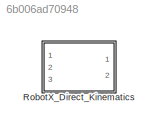
MODEL slx_6b006ad70948
KIND library
CONFIG AbsTol = auto
CONFIG EnableMultiTasking = off
CONFIG FixedStep = auto
CONFIG MaxStep = auto
CONFIG MinStep = auto
CONFIG RelTol = 1e-3
CONFIG SampleTimeConstraint = Unconstrained
CONFIG SolverName = VariableStepAuto
CONFIG StartTime = 0.0
CONFIG StopTime = 10.0
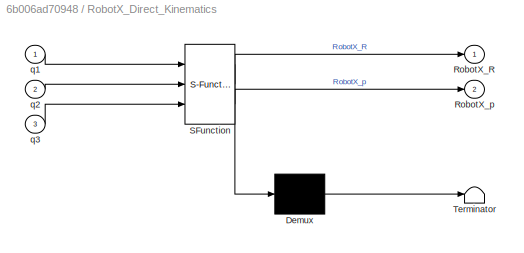
BLOCK [SubSystem] RobotX_Direct_Kinematics
  ErrorFcn = Stateflow.Translate.translate
  PermitHierarchicalResolution = ExplicitOnly
  Ports = [3, 2]
  RequestExecContextInheritance = off
  SFBlockType = MATLAB Function
  TreatAsAtomicUnit = on
BLOCK [Demux] RobotX_Direct_Kinematics/ Demux 
  Outputs = 1
  Ports = [1, 1]
BLOCK [S-Function] RobotX_Direct_Kinematics/ SFunction 
  EnableBusSupport = off
  FunctionName = sf_sfun
  PortCounts = [3 3]
  Ports = [3, 3]
  SFcnIsStateOwnerBlock = off
  SFunctionDeploymentMode = off
  Tag = Stateflow S-Function 2
BLOCK [Terminator] RobotX_Direct_Kinematics/ Terminator 
BLOCK [Outport] RobotX_Direct_Kinematics/RobotX_R
BLOCK [Outport] RobotX_Direct_Kinematics/RobotX_p
  Port = 2
BLOCK [Inport] RobotX_Direct_Kinematics/q1
BLOCK [Inport] RobotX_Direct_Kinematics/q2
  Port = 2
BLOCK [Inport] RobotX_Direct_Kinematics/q3
  Port = 3
CHART RobotX_Direct_Kinematics states=1 transitions=1
  STATE_LABEL 'eML_blk_kernel()'
  STATE_LABEL 'SCRIPT:\nfunction [RobotX_R,RobotX_p] = RobotX_Direct_Kinematics(q1,q2,q3)\n%#codegen\n\n%    This function was generated by the Symbolic Math Toolbox version 8.7.\n%    02-May-2023 08:32:00\n\nt2 = cos(q1);\nt3 = cos(q2);\nt4 = sin(q1);\nt5 = sin(q2);\nt6 = -t5;\nRobotX_R = reshape([t2.*t6,t4.*t6,t3,t4,-t2,0.0,t2.*t3,t3.*t4,t5],[3,3]);\nif nargout > 1\n    t7 = q3.*t3.*2.0;\n    t8 = t3+t6+t7;\n    RobotX_p = [(...<+56ch>'
CHART  states=0 transitions=0
